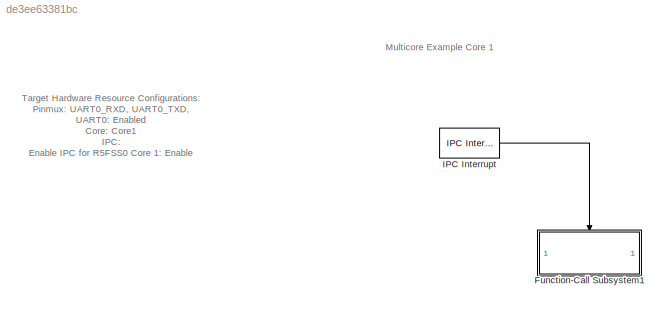
MODEL slx_de3ee63381bc
KIND model
CONFIG AbsTol = auto
CONFIG EnableMultiTasking = off
CONFIG FixedStep = auto
CONFIG MaxStep = auto
CONFIG MinStep = auto
CONFIG RelTol = 1e-3
CONFIG SampleTimeConstraint = Unconstrained
CONFIG SolverName = FixedStepAuto
CONFIG StartTime = 0.0
CONFIG StopTime = 10.0
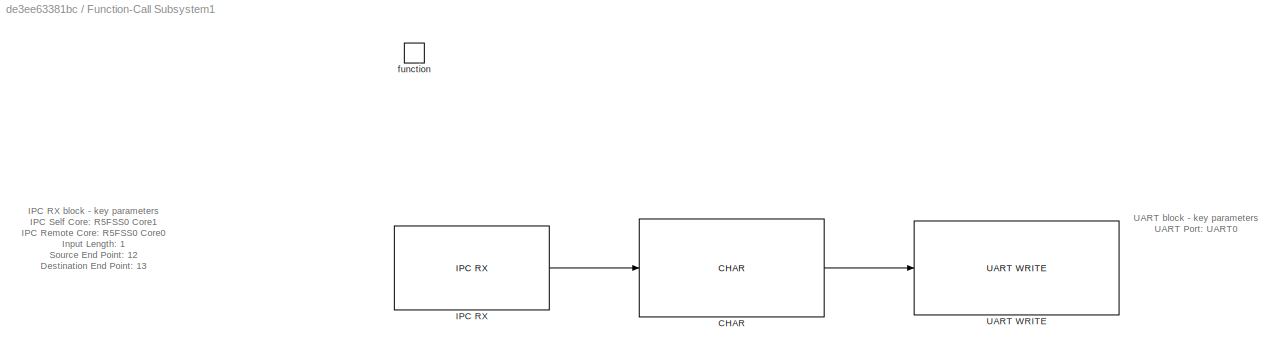
BLOCK [SubSystem] Function-Call Subsystem1
  TreatAsAtomicUnit = on
BLOCK [Reference] Function-Call Subsystem1/CHAR  REF=peripheral_library_blocks_am263x/CHAR
  SourceBlock = peripheral_library_blocks_am263x/CHAR
  SourceType = CHAR
BLOCK [Reference] Function-Call Subsystem1/IPC RX  REF=peripheral_library_blocks_am263x/IPC RX
  SourceBlock = peripheral_library_blocks_am263x/IPC RX
  SourceType = IPC_RX_AM263X
BLOCK [Reference] Function-Call Subsystem1/UART WRITE  REF=peripheral_library_blocks_am263x/UART WRITE
  SourceBlock = peripheral_library_blocks_am263x/UART WRITE
  SourceType = UART_WRITE_AM263X
BLOCK [TriggerPort] Function-Call Subsystem1/function
  StatesWhenEnabling = held
  TriggerType = function-call
  VariantControl = (inherit)
BLOCK [Reference] IPC Interrupt  REF=IPC_HWI_lib/IPC Interrupt
  SourceBlock = IPC_HWI_lib/IPC Interrupt
ANNOTATION (root): Multicore Example Core 1
ANNOTATION (root): Target Hardware Resource Configurations: Pinmux: UART0_RXD, UART0_TXD, UART0: Enabled Core: Core1 IPC: Enable IPC for R5FSS0 Core 1: Enable Number of Remote Cores Enabled: 1 Enable Remote Core: R5FSS0 CORE0: Enable RP Message Number of Buffers: 8 RP Message Buffers Size(bytes): 128
ANNOTATION Function-Call Subsystem1: IPC RX block - key parameters IPC Self Core: R5FSS0 Core1 IPC Remote Core: R5FSS0 Core0 Input Length: 1 Source End Point: 12 Destination End Point: 13 Data Type: uint32
ANNOTATION Function-Call Subsystem1: UART block - key parameters UART Port: UART0
LINE Function-Call Subsystem1/CHAR:1 -> Function-Call Subsystem1/UART WRITE:1
LINE Function-Call Subsystem1/IPC RX:1 -> Function-Call Subsystem1/CHAR:1
LINE IPC Interrupt:1 -> Function-Call Subsystem1:trigger
